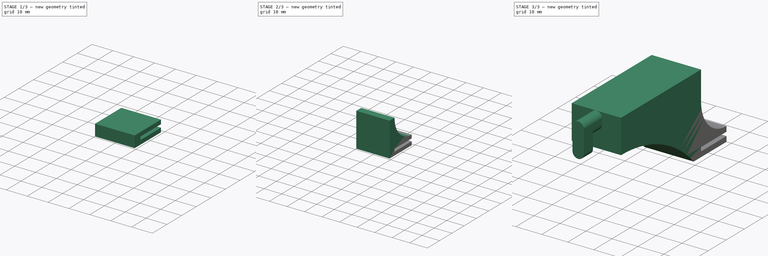
[diagram: build sequence overview — one tinted view per stage of 3, left to right]
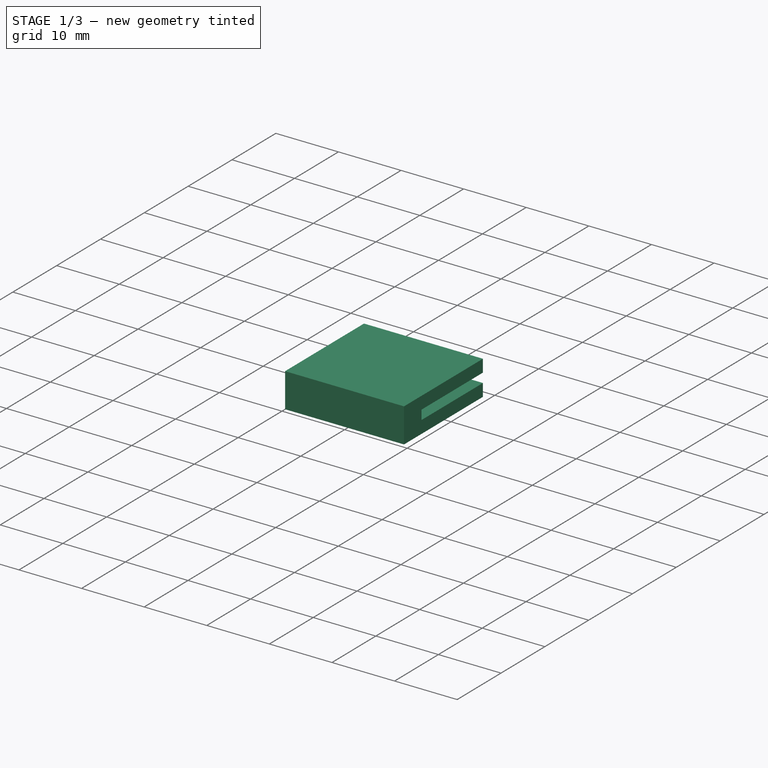
[diagram: stage 1 of 3 — iso view after this stage's code; geometry added in this stage tinted green]
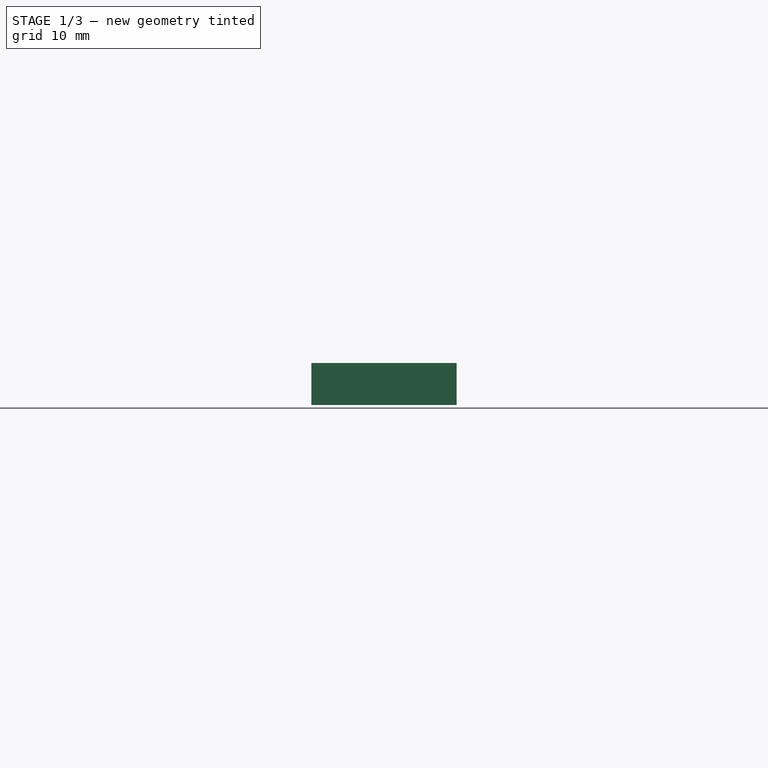
[diagram: stage 1 of 3 — front view after this stage's code; geometry added in this stage tinted green]
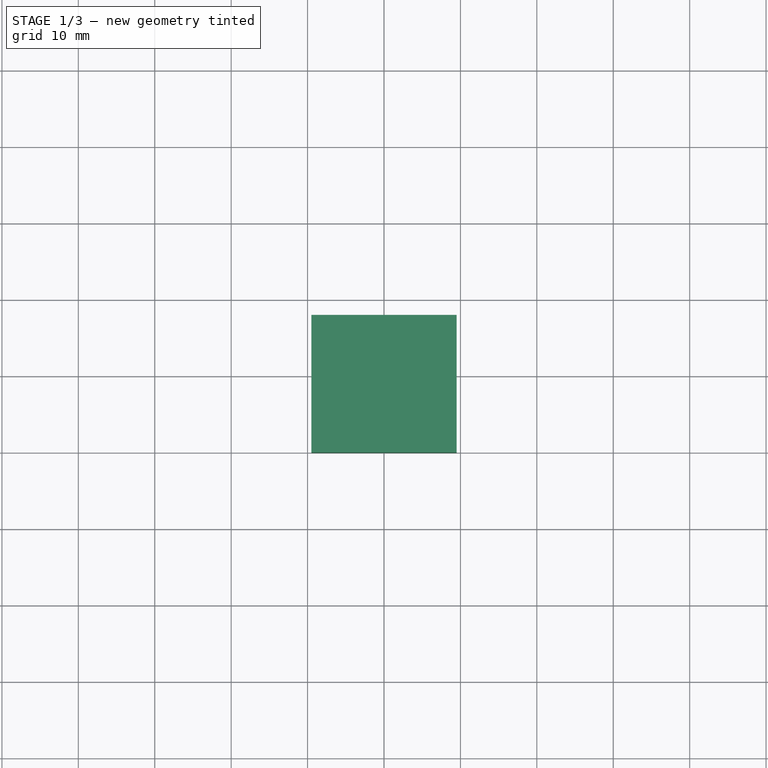
[diagram: stage 1 of 3 — top view after this stage's code; geometry added in this stage tinted green]
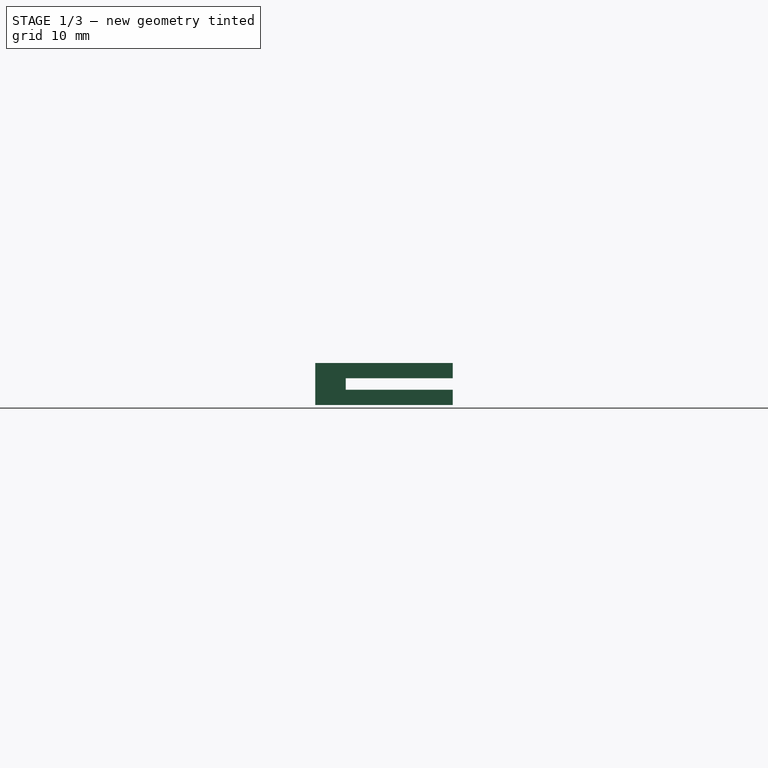
[diagram: stage 1 of 3 — right view after this stage's code; geometry added in this stage tinted green]
FCSTD DOCUMENT  (FreeCAD 1.0R39285 (Git))
Label: 01_Light_Hanger
License: All rights reserved
LicenseURL: https://en.wikipedia.org/wiki/All_rights_reserved
objects: Sketcher::SketchObject×8, PartDesign::Pad×8, PartDesign::Body×1
note: 41 computed .brp shape members not serialized (recipe doc carries the construction recipe); baked Part::Feature solids carry a one-line shape summary decoded from their .brp

FEATURE [Sketcher::SketchObject] Sketch
  ArcFitTolerance = 1e-06
  AttachmentSupport = -> [XY_Plane]
  FullyConstrained = true
  MakeInternals = false
  MapMode = 5
  sketch-geometry (4):
    g0: LineSegment StartX=-9.5 StartY=8 StartZ=0 EndX=-9.5 EndY=-10 EndZ=0
    g1: LineSegment StartX=-9.5 StartY=-10 StartZ=0 EndX=9.5 EndY=-10 EndZ=0
    g2: LineSegment StartX=9.5 StartY=-10 StartZ=0 EndX=9.5 EndY=8 EndZ=0
    g3: LineSegment StartX=9.5 StartY=8 StartZ=0 EndX=-9.5 EndY=8 EndZ=0
  constraints (12):
    c: Coincident(g0,g1)
    c: Coincident(g1,g2)
    c: Coincident(g2,g3)
    c: Coincident(g3,g0)
    c: Vertical(g0)
    c: Vertical(g2)
    c: Horizontal(g1)
    c: Horizontal(g3)
    c: Distance(g0,g2) = 19
    c: Distance(g1,g3) = 18
    c: DistanceY(g-1,g0) = 8
    c: DistanceX(g0,g-1) = 9.5
FEATURE [PartDesign::Pad] Pad
  Direction = (0,0,1)
  Length = 2
  Length2 = 10
  Profile = -> Sketch
  ReferenceAxis = -> Sketch [N_Axis]
  Refine = true
  Suppressed = false
  Type = 0
FEATURE [Sketcher::SketchObject] Sketch001
  ArcFitTolerance = 1e-06
  AttachmentSupport = -> [Pad]
  FullyConstrained = true
  MakeInternals = false
  MapMode = 5
  Placement = pos=(0,0,2) rot=(0,0,1;0rad)
  sketch-geometry (4):
    g0: LineSegment StartX=-9.5 StartY=-6 StartZ=0 EndX=-9.5 EndY=-10 EndZ=0
    g1: LineSegment StartX=-9.5 StartY=-10 StartZ=0 EndX=9.5 EndY=-10 EndZ=0
    g2: LineSegment StartX=9.5 StartY=-10 StartZ=0 EndX=9.5 EndY=-6 EndZ=0
    g3: LineSegment StartX=9.5 StartY=-6 StartZ=0 EndX=-9.5 EndY=-6 EndZ=0
  constraints (12):
    c: Coincident(g0,g1)
    c: Coincident(g1,g2)
    c: Coincident(g2,g3)
    c: Coincident(g3,g0)
    c: Vertical(g0)
    c: Vertical(g2)
    c: Horizontal(g1)
    c: Horizontal(g3)
    c: Distance(g0,g2) = 19
    c: Distance(g1,g3) = 4
    c: DistanceY(g0,g-1) = 10
    c: DistanceX(g0,g-1) = 9.5
FEATURE [PartDesign::Pad] Pad001
  BaseFeature = -> Pad
  Direction = (0,0,1)
  Length = 3.5
  Length2 = 10
  Profile = -> Sketch001
  ReferenceAxis = -> Sketch001 [N_Axis]
  Refine = true
  Suppressed = false
  Type = 0
FEATURE [Sketcher::SketchObject] Sketch002
  ArcFitTolerance = 1e-06
  AttachmentSupport = -> [Pad001]
  FullyConstrained = true
  MakeInternals = false
  MapMode = 5
  Placement = pos=(0,-6,0) rot=(0,0.707107,0.707107;3.14159rad)
  sketch-geometry (4):
    g0: LineSegment StartX=-9.5 StartY=5.5 StartZ=0 EndX=-9.5 EndY=3.5 EndZ=0
    g1: LineSegment StartX=-9.5 StartY=3.5 StartZ=0 EndX=9.5 EndY=3.5 EndZ=0
    g2: LineSegment StartX=9.5 StartY=3.5 StartZ=0 EndX=9.5 EndY=5.5 EndZ=0
    g3: LineSegment StartX=9.5 StartY=5.5 StartZ=0 EndX=-9.5 EndY=5.5 EndZ=0
  constraints (12):
    c: Coincident(g0,g1)
    c: Coincident(g1,g2)
    c: Coincident(g2,g3)
    c: Coincident(g3,g0)
    c: Vertical(g0)
    c: Vertical(g2)
    c: Horizontal(g1)
    c: Horizontal(g3)
    c: Distance(g0,g2) = 19
    c: Distance(g1,g3) = 2
    c: DistanceY(g-1,g0) = 3.5
    c: DistanceX(g0,g-1) = 9.5
FEATURE [PartDesign::Pad] Pad002
  BaseFeature = -> Pad001
  Direction = (0,1,-2e-16)
  Length = 14
  Length2 = 10
  Profile = -> Sketch002
  ReferenceAxis = -> Sketch002 [N_Axis]
  Refine = true
  Suppressed = false
  Type = 0
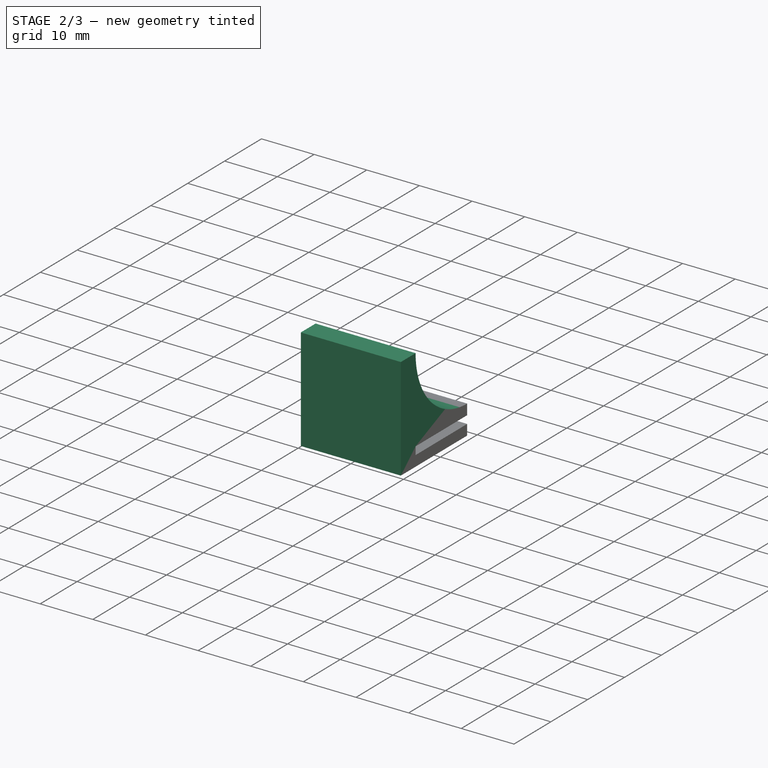
[diagram: stage 2 of 3 — iso view after this stage's code; geometry added in this stage tinted green]
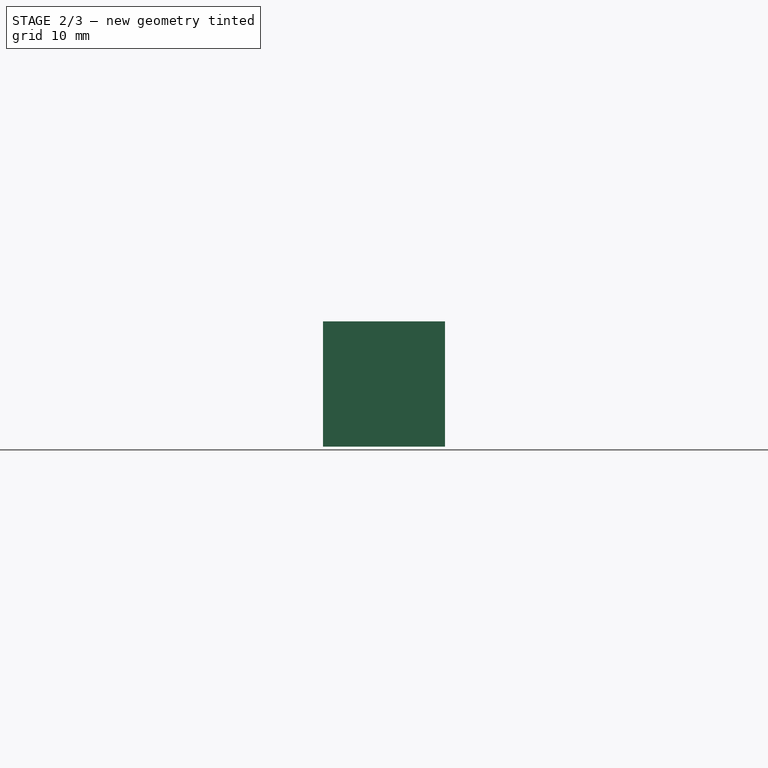
[diagram: stage 2 of 3 — front view after this stage's code; geometry added in this stage tinted green]
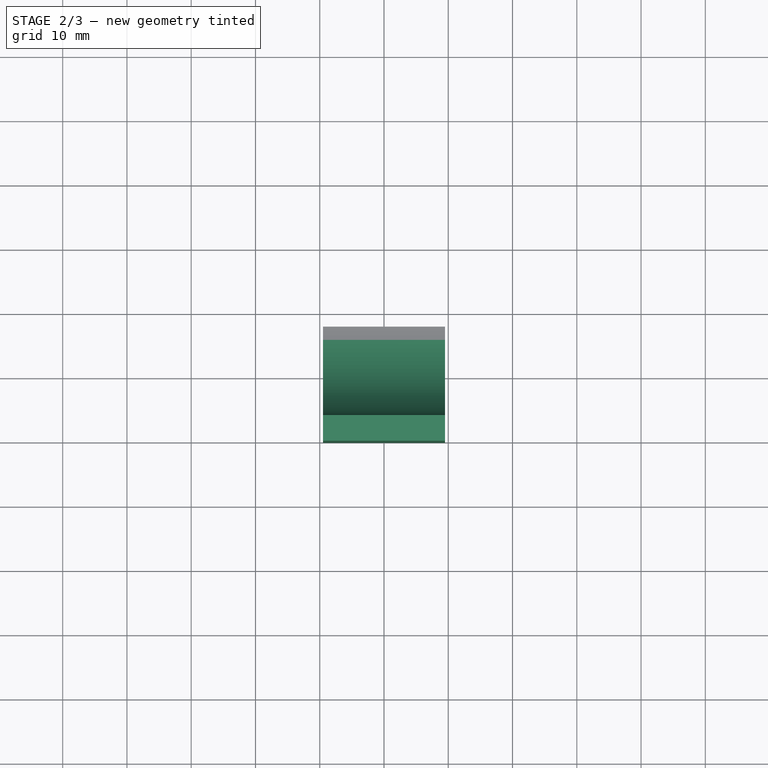
[diagram: stage 2 of 3 — top view after this stage's code; geometry added in this stage tinted green]
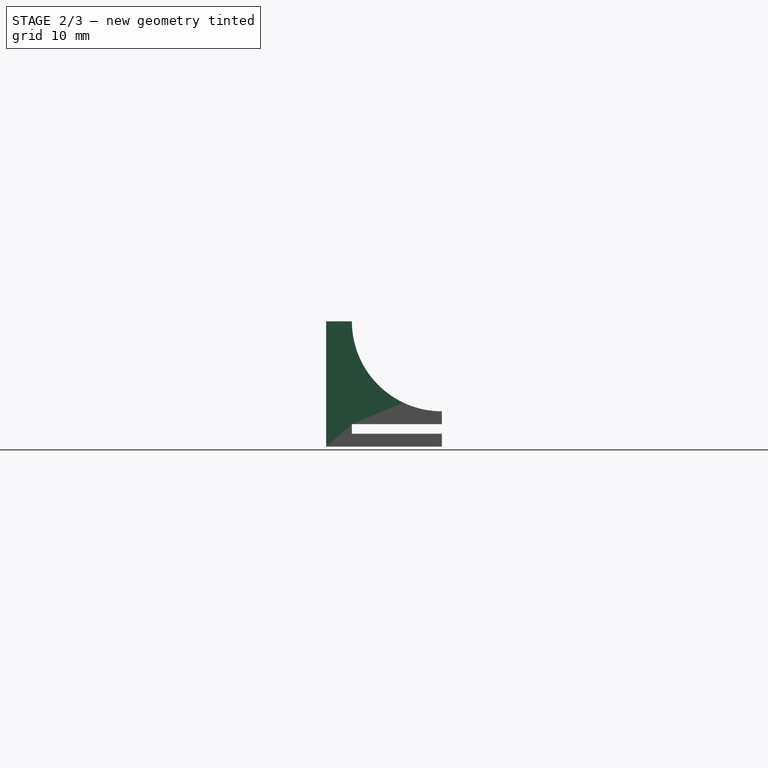
[diagram: stage 2 of 3 — right view after this stage's code; geometry added in this stage tinted green]
FEATURE [Sketcher::SketchObject] Sketch003
  ArcFitTolerance = 1e-06
  AttachmentSupport = -> [Pad002]
  FullyConstrained = true
  MakeInternals = false
  MapMode = 5
  Placement = pos=(0,0,5.5) rot=(0,0,1;0rad)
  sketch-geometry (4):
    g0: LineSegment StartX=-9.5 StartY=-6 StartZ=0 EndX=-9.5 EndY=-10 EndZ=0
    g1: LineSegment StartX=-9.5 StartY=-10 StartZ=0 EndX=9.5 EndY=-10 EndZ=0
    g2: LineSegment StartX=9.5 StartY=-10 StartZ=0 EndX=9.5 EndY=-6 EndZ=0
    g3: LineSegment StartX=9.5 StartY=-6 StartZ=0 EndX=-9.5 EndY=-6 EndZ=0
  constraints (12):
    c: Coincident(g0,g1)
    c: Coincident(g1,g2)
    c: Coincident(g2,g3)
    c: Coincident(g3,g0)
    c: Vertical(g0)
    c: Vertical(g2)
    c: Horizontal(g1)
    c: Horizontal(g3)
    c: Distance(g0,g2) = 19
    c: Distance(g1,g3) = 4
    c: DistanceY(g0,g-1) = 10
    c: DistanceX(g0,g-1) = 9.5
FEATURE [PartDesign::Pad] Pad003
  BaseFeature = -> Pad002
  Direction = (0,0,1)
  Length = 14
  Length2 = 10
  Profile = -> Sketch003
  ReferenceAxis = -> Sketch003 [N_Axis]
  Refine = true
  Suppressed = false
  Type = 0
FEATURE [Sketcher::SketchObject] Sketch004
  ArcFitTolerance = 1e-06
  AttachmentSupport = -> [Pad003]
  ExternalGeometry = -> [Pad003]
  FullyConstrained = true
  MakeInternals = false
  MapMode = 5
  Placement = pos=(-9.5,0,0) rot=(0.57735,-0.57735,-0.57735;2.0944rad)
  sketch-geometry (4):
    g0: LineSegment StartX=-8 StartY=5.5 StartZ=0 EndX=6 EndY=5.5 EndZ=0
    g1: LineSegment StartX=6 StartY=19.5 StartZ=0 EndX=6 EndY=5.5 EndZ=0
    g2: GeomPoint [constr] X=-8 Y=19.5 Z=0
    g3: ArcOfCircle CenterX=-8 CenterY=19.5 CenterZ=0 NormalX=0 NormalY=0 NormalZ=1 AngleXU=0 Radius=14 StartAngle=4.71239 EndAngle=6.28319
  constraints (10):
    c: Distance(g0) = 14
    c: Horizontal(g0)
    c: Distance(g1) = 14
    c: Vertical(g1)
    c: Coincident(g0,g1)
    c: Coincident(g0,g-4)
    c: Horizontal(g2,g1)
    c: Coincident(g3,g0)
    c: Coincident(g3,g1)
    c: Coincident(g3,g2)
FEATURE [PartDesign::Pad] Pad004
  BaseFeature = -> Pad003
  Direction = (-1,0,0)
  Length = 19
  Length2 = 10
  Profile = -> Sketch004
  ReferenceAxis = -> Sketch004 [N_Axis]
  Refine = true
  Reversed = true
  Suppressed = false
  Type = 0
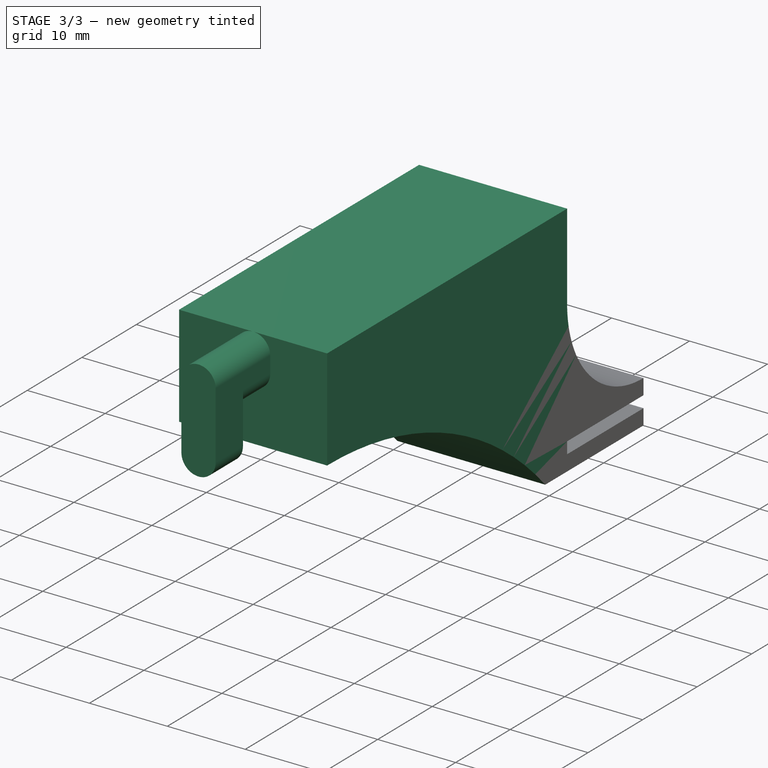
[diagram: stage 3 of 3 — iso view after this stage's code; geometry added in this stage tinted green]
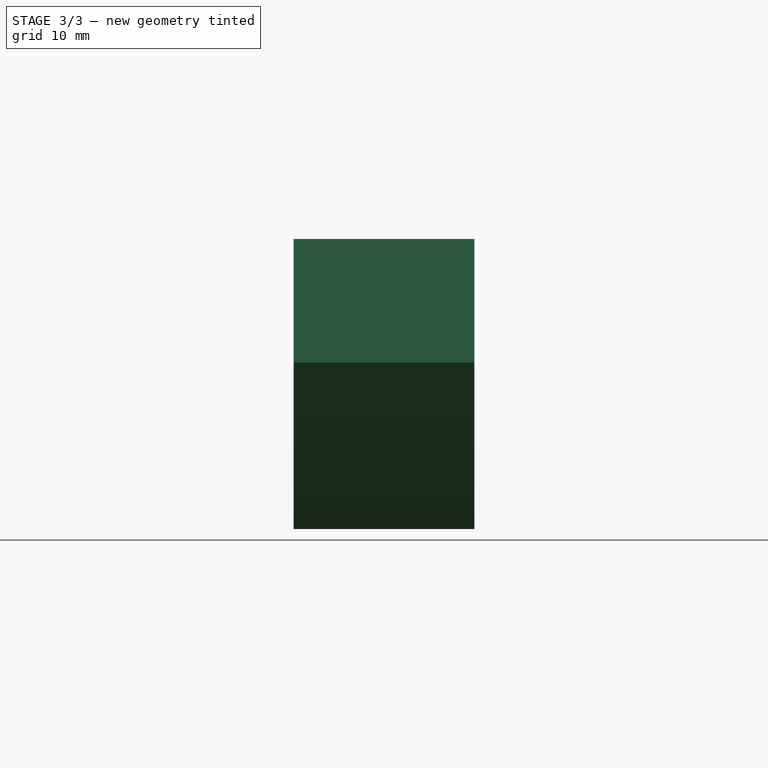
[diagram: stage 3 of 3 — front view after this stage's code; geometry added in this stage tinted green]
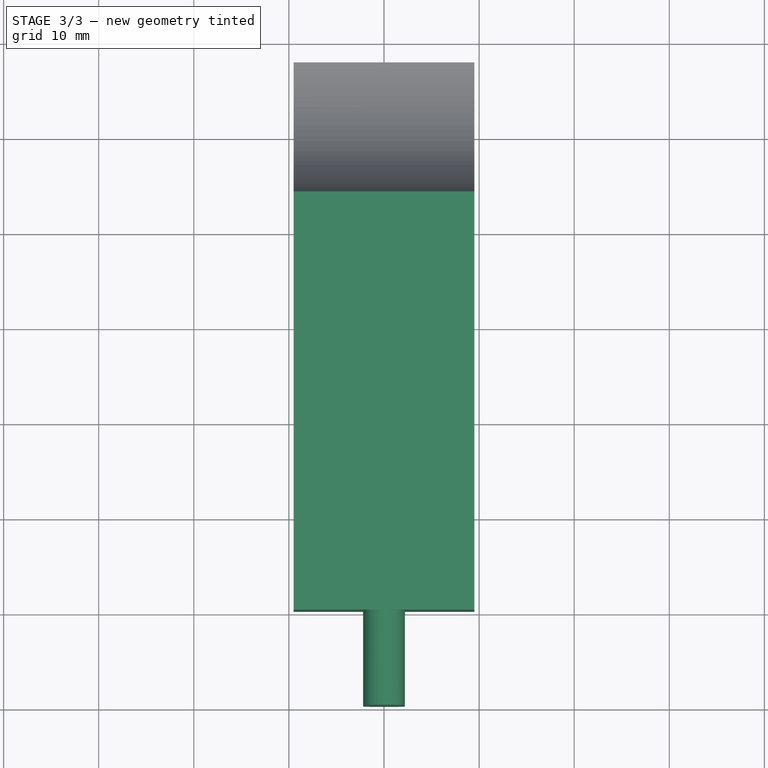
[diagram: stage 3 of 3 — top view after this stage's code; geometry added in this stage tinted green]
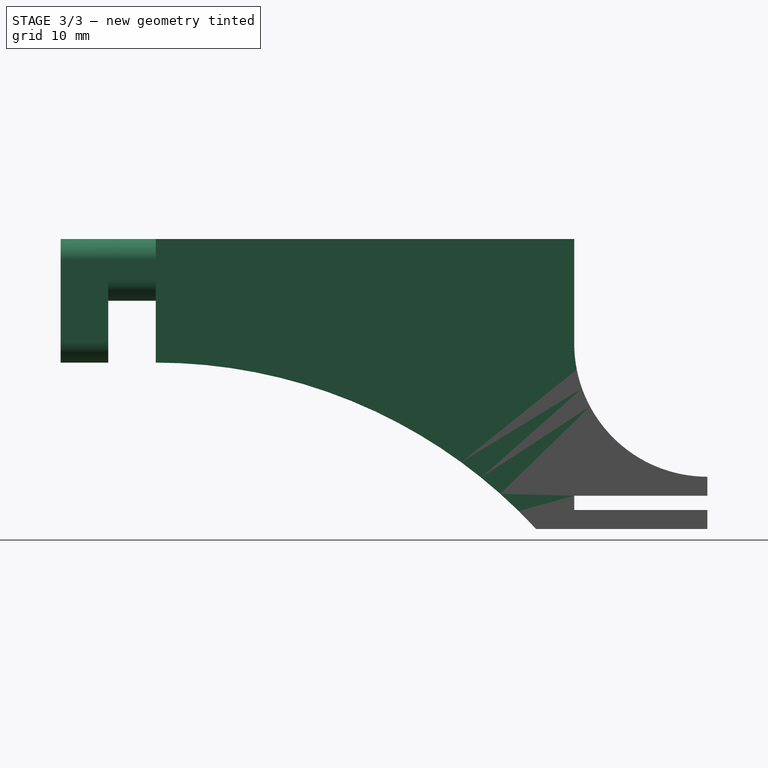
[diagram: stage 3 of 3 — right view after this stage's code; geometry added in this stage tinted green]
FEATURE [Sketcher::SketchObject] Sketch005
  ArcFitTolerance = 1e-06
  AttachmentSupport = -> [Pad004]
  ExternalGeometry = -> [Pad004]
  FullyConstrained = true
  MakeInternals = false
  MapMode = 5
  Placement = pos=(-9.5,0,0) rot=(0.57735,-0.57735,-0.57735;2.0944rad)
  sketch-geometry (7):
    g0: LineSegment StartX=10 StartY=30.5 StartZ=0 EndX=6 EndY=30.5 EndZ=0
    g1: LineSegment StartX=50 StartY=17.5 StartZ=0 EndX=50 EndY=30.5 EndZ=0
    g2: LineSegment StartX=50 StartY=30.5 StartZ=0 EndX=10 EndY=30.5 EndZ=0
    g3: ArcOfCircle CenterX=50 CenterY=-36.9643 CenterZ=0 NormalX=0 NormalY=0 NormalZ=1 AngleXU=0 Radius=54.4643 StartAngle=1.5708 EndAngle=2.39562
    g4: LineSegment StartX=6 StartY=30.5 StartZ=0 EndX=6 EndY=19.5 EndZ=0
    g5: LineSegment StartX=6 StartY=19.5 StartZ=0 EndX=10 EndY=19.5 EndZ=0
    g6: LineSegment StartX=10 StartY=19.5 StartZ=0 EndX=10 EndY=0 EndZ=0
  constraints (19):
    c: Horizontal(g0)
    c: Coincident(g1,g2)
    c: Vertical(g1)
    c: Horizontal(g2)
    c: Distance(g2,g1) = 40
    c: Coincident(g3,g-3)
    c: Vertical(g3,g1)
    c: Coincident(g2,g0)
    c: Equal(g0,g-4)
    c: Coincident(g3,g1)
    c: DistanceY(g1,g1) = 13
    c: Distance(g4) = 11
    c: Vertical(g4)
    c: Coincident(g4,g0)
    c: Coincident(g4,g-4)
    c: Coincident(g5,g4)
    c: Coincident(g5,g-4)
    c: Coincident(g6,g5)
    c: Coincident(g6,g3)
FEATURE [PartDesign::Pad] Pad005
  BaseFeature = -> Pad004
  Direction = (-1,0,0)
  Length = 19
  Length2 = 10
  Profile = -> Sketch005
  ReferenceAxis = -> Sketch005 [N_Axis]
  Refine = true
  Reversed = true
  Suppressed = false
  Type = 0
FEATURE [Sketcher::SketchObject] Sketch006
  ArcFitTolerance = 1e-06
  AttachmentSupport = -> [Pad005]
  ExternalGeometry = -> [Pad005]
  FullyConstrained = true
  MakeInternals = false
  MapMode = 5
  Placement = pos=(0,-50,0) rot=(1,0,0;1.5708rad)
  sketch-geometry (4):
    g0: ArcOfCircle CenterX=-4.217e-13 CenterY=26.2 CenterZ=0 NormalX=0 NormalY=0 NormalZ=1 AngleXU=0 Radius=2.2 StartAngle=3.14159 EndAngle=6.28319
    g1: ArcOfCircle CenterX=-6.19e-14 CenterY=28.3 CenterZ=0 NormalX=0 NormalY=0 NormalZ=1 AngleXU=0 Radius=2.2 StartAngle=1.73e-14 EndAngle=3.14159
    g2: LineSegment StartX=-2.2 StartY=26.2 StartZ=0 EndX=-2.2 EndY=28.3 EndZ=0
    g3: LineSegment StartX=2.2 StartY=26.2 StartZ=0 EndX=2.2 EndY=28.3 EndZ=0
  constraints (10):
    c: Tangent(g0,g2) = 1.5708
    c: Tangent(g0,g3) = -1.5708
    c: Tangent(g1,g2) = 1.5708
    c: Tangent(g1,g3) = -1.5708
    c: Equal(g0,g1)
    c: Vertical(g3)
    c: Distance(g0,g1) = 2.1
    c: Radius(g0) = 2.2
    c: DistanceY(g1,g-3) = 2.2
    c: PointOnObject(g1,g-2)
FEATURE [PartDesign::Pad] Pad006
  BaseFeature = -> Pad005
  Direction = (0,-1,2e-16)
  Length = 5
  Length2 = 10
  Profile = -> Sketch006
  ReferenceAxis = -> Sketch006 [N_Axis]
  Refine = true
  Suppressed = false
  Type = 0
FEATURE [Sketcher::SketchObject] Sketch007
  ArcFitTolerance = 1e-06
  AttachmentSupport = -> [Pad006]
  ExternalGeometry = -> [Pad006]
  FullyConstrained = true
  MakeInternals = false
  MapMode = 5
  Placement = pos=(0,-55,0) rot=(1,0,0;1.5708rad)
  sketch-geometry (4):
    g0: ArcOfCircle CenterX=-6.19e-14 CenterY=28.3 CenterZ=0 NormalX=0 NormalY=0 NormalZ=1 AngleXU=0 Radius=2.2 StartAngle=0 EndAngle=3.14159
    g1: ArcOfCircle CenterX=-6.15e-14 CenterY=19.7 CenterZ=0 NormalX=0 NormalY=0 NormalZ=1 AngleXU=0 Radius=2.2 StartAngle=3.14159 EndAngle=6.28319
    g2: LineSegment StartX=2.2 StartY=28.3 StartZ=0 EndX=2.2 EndY=19.7 EndZ=0
    g3: LineSegment StartX=-2.2 StartY=28.3 StartZ=0 EndX=-2.2 EndY=19.7 EndZ=0
  constraints (9):
    c: Tangent(g0,g2) = 1.5708
    c: Tangent(g0,g3) = -1.5708
    c: Tangent(g1,g2) = 1.5708
    c: Tangent(g1,g3) = -1.5708
    c: Equal(g0,g1)
    c: Vertical(g3)
    c: Distance(g0,g1) = 8.6
    c: Radius(g0) = 2.2
    c: Coincident(g0,g-3)
FEATURE [PartDesign::Pad] Pad007
  BaseFeature = -> Pad006
  Direction = (0,-1,2e-16)
  Length = 5
  Length2 = 10
  Profile = -> Sketch007
  ReferenceAxis = -> Sketch007 [N_Axis]
  Refine = true
  Suppressed = false
  Type = 0
FEATURE [PartDesign::Body] Body
  AllowCompound = false
  Group = -> [Sketch,Pad,Sketch001,Pad001,Sketch002,Pad002,Sketch003,Pad003,Sketch004,Pad004,Sketch005,Pad005,Sketch006,Pad006,Sketch007,Pad007]
  Origin = -> Origin
  Tip = -> Pad007
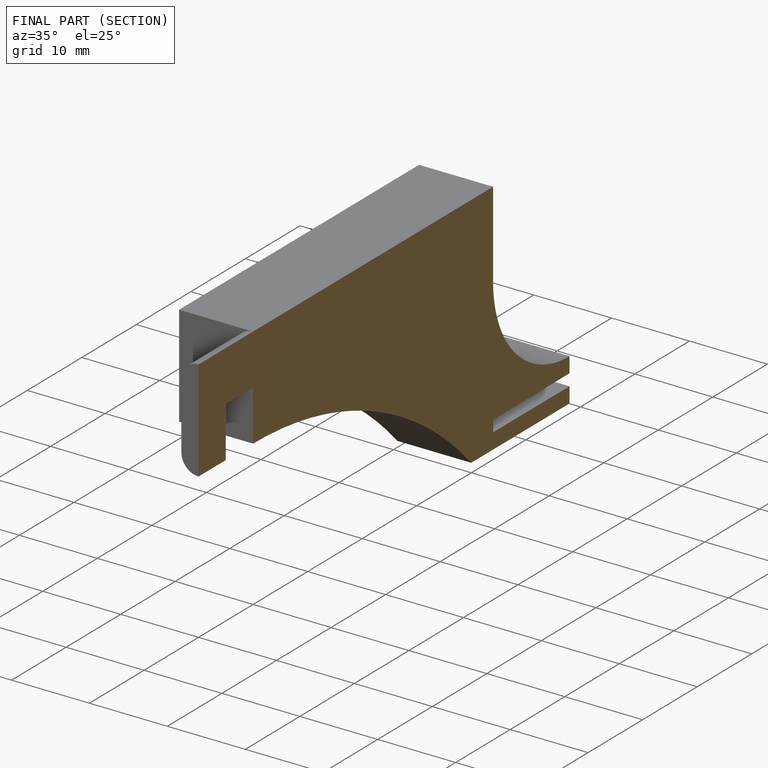
[diagram: finished part — half-section view (interior)]
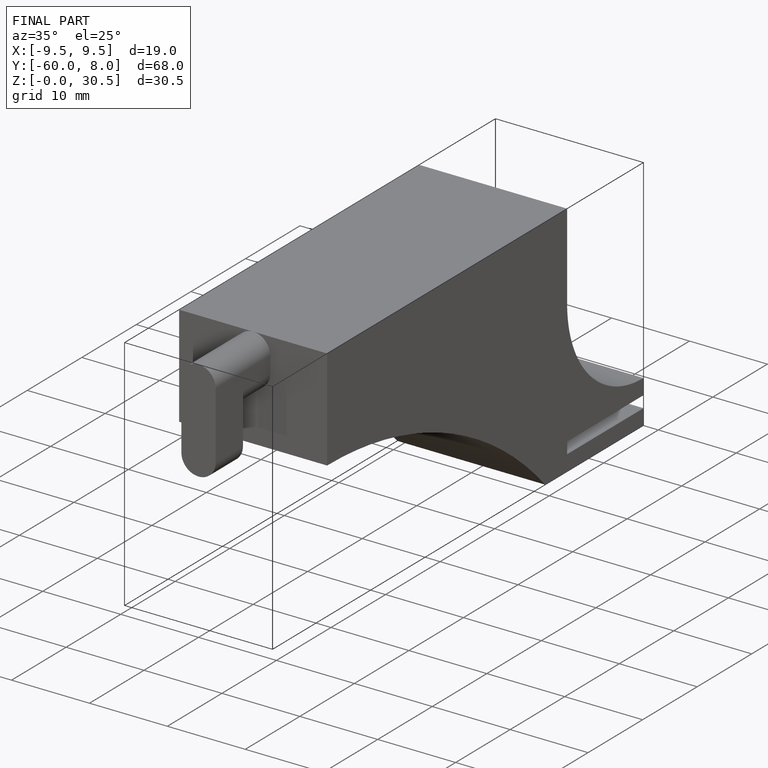
[diagram: finished part — iso view with bounding-box wireframe]
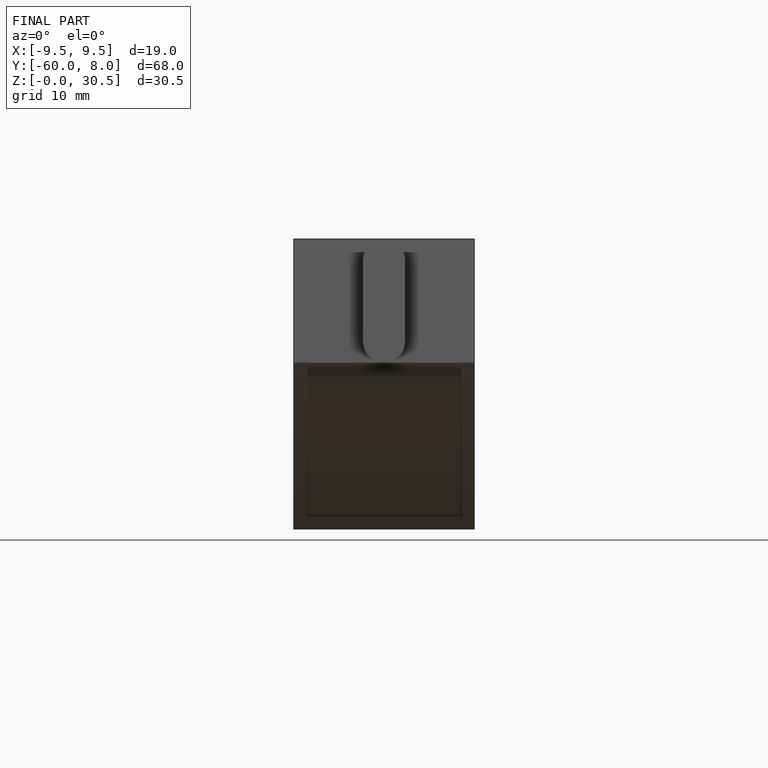
[diagram: finished part — front view with bounding-box wireframe]
